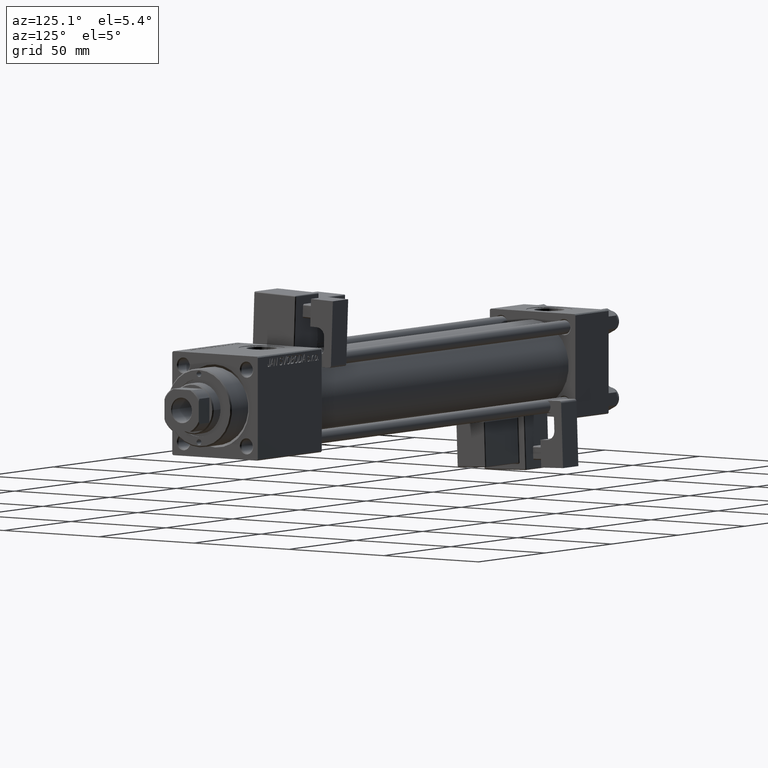
[diagram: clean part render]
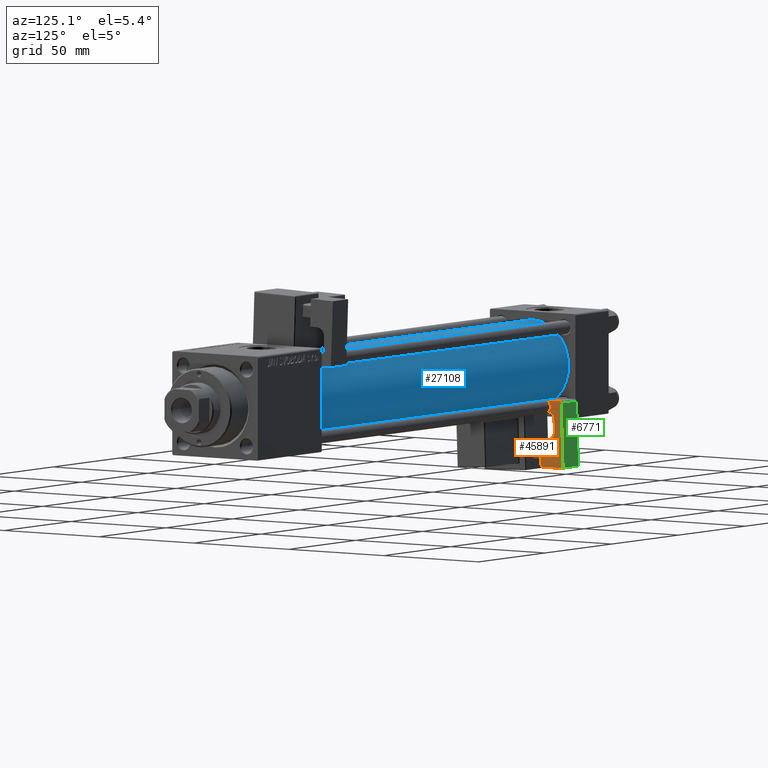
[diagram: same view with three faces highlighted in distinct colors, each labeled with its STEP entity id]
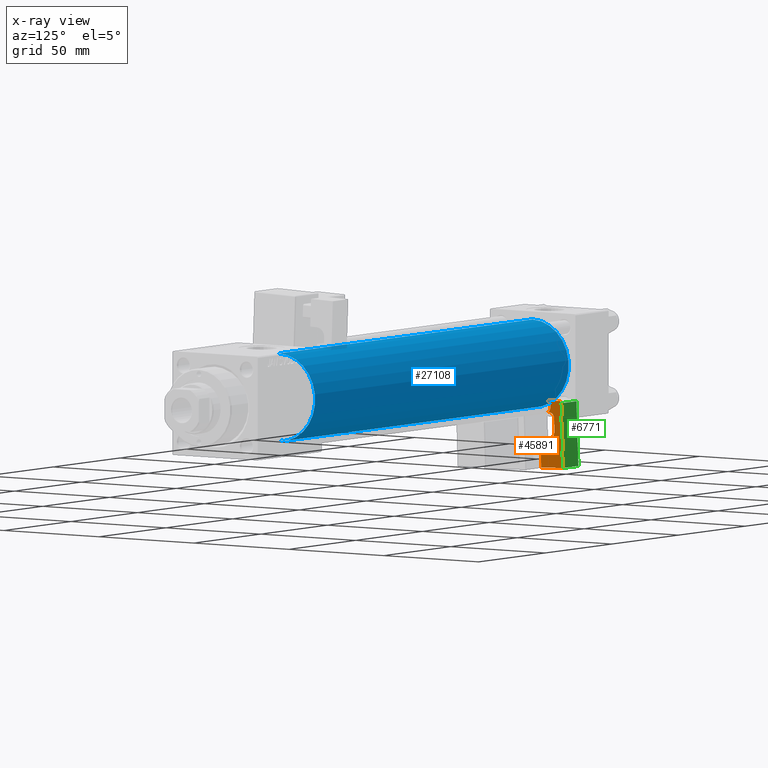
[diagram: x-ray of the same camera — body ghosted, the three highlighted faces saturated]
A machine part, auxiliary view with three faces highlighted in distinct colors.
The next image is the same camera in x-ray (body ghosted, the three faces saturated) — at least one of them is partly hidden behind the body in this view.
Their STEP definitions:

[orange] entity #45891 — the highlighted planar face has unit normal (-1, 0, 0).
#1113 = ORIENTED_EDGE ( 'NONE', *, *, #6749, .T. ) ;
#1540 = AXIS2_PLACEMENT_3D ( 'NONE', #41530, #20860, #29837 ) ;
#2222 = ORIENTED_EDGE ( 'NONE', *, *, #22876, .T. ) ;
#2661 = CIRCLE ( 'NONE', #24387, 2.999999999999999112 ) ;
#2738 = ORIENTED_EDGE ( 'NONE', *, *, #41881, .T. ) ;
#2755 = CARTESIAN_POINT ( 'NONE',  ( 5.750000000000000000, 5.750000000000001776, 28.00000000000000000 ) ) ;
#3214 = DIRECTION ( 'NONE',  ( -1.000000000000000000, 0.000000000000000000, 0.000000000000000000 ) ) ;
#3556 = EDGE_CURVE ( 'NONE', #51096, #42218, #6884, .T. ) ;
#3738 = CARTESIAN_POINT ( 'NONE',  ( 5.750000000000000000, -1.015596606550550396, 24.19533616120787300 ) ) ;
#4018 = VECTOR ( 'NONE', #40041, 1000.000000000000000 ) ;
#4258 = VERTEX_POINT ( 'NONE', #24271 ) ;
#4271 = PLANE ( 'NONE',  #47415 ) ;
#4318 = ORIENTED_EDGE ( 'NONE', *, *, #5758, .T. ) ;
#4638 = EDGE_CURVE ( 'NONE', #51036, #34882, #13574, .T. ) ;
#4773 = VERTEX_POINT ( 'NONE', #53696 ) ;
#5126 = ORIENTED_EDGE ( 'NONE', *, *, #29053, .T. ) ;
#5247 = DIRECTION ( 'NONE',  ( -0.000000000000000000, 1.000000000000000000, -0.000000000000000000 ) ) ;
#5293 = CARTESIAN_POINT ( 'NONE',  ( 5.750000000000000000, 4.750000000000002665, 29.00000000000000000 ) ) ;
#5413 = DIRECTION ( 'NONE',  ( 0.000000000000000000, -1.000000000000000000, 0.000000000000000000 ) ) ;
#5758 = EDGE_CURVE ( 'NONE', #10856, #4258, #12825, .T. ) ;
#5987 = VERTEX_POINT ( 'NONE', #38250 ) ;
#6133 = VERTEX_POINT ( 'NONE', #48282 ) ;
#6749 = EDGE_CURVE ( 'NONE', #11953, #51036, #23232, .T. ) ;
#6884 = LINE ( 'NONE', #33153, #4018 ) ;
#7364 = ORIENTED_EDGE ( 'NONE', *, *, #39955, .T. ) ;
#10856 = VERTEX_POINT ( 'NONE', #42660 ) ;
#11009 = ORIENTED_EDGE ( 'NONE', *, *, #16580, .T. ) ;
#11033 = ORIENTED_EDGE ( 'NONE', *, *, #42007, .F. ) ;
#11953 = VERTEX_POINT ( 'NONE', #2755 ) ;
#12825 = CIRCLE ( 'NONE', #38016, 4.000000000000000000 ) ;
#12894 = CARTESIAN_POINT ( 'NONE',  ( 5.750000000000000000, -2.936149805543990521, 26.50000000000000000 ) ) ;
#13089 = CARTESIAN_POINT ( 'NONE',  ( 5.750000000000000000, 1.749999999999999112, 21.50000000000000000 ) ) ;
#13574 = LINE ( 'NONE', #39858, #20543 ) ;
#13944 = LINE ( 'NONE', #30801, #44669 ) ;
#14196 = DIRECTION ( 'NONE',  ( 0.000000000000000000, -0.7682212795973755171, -0.6401843996644802637 ) ) ;
#14604 = ORIENTED_EDGE ( 'NONE', *, *, #3556, .T. ) ;
#14921 = AXIS2_PLACEMENT_3D ( 'NONE', #22548, #43203, #51362 ) ;
#15564 = DIRECTION ( 'NONE',  ( -0.000000000000000000, -0.000000000000000000, -1.000000000000000000 ) ) ;
#16580 = EDGE_CURVE ( 'NONE', #6133, #48592, #2661, .T. ) ;
#16831 = DIRECTION ( 'NONE',  ( -0.000000000000000000, -0.000000000000000000, -1.000000000000000000 ) ) ;
#16877 = VECTOR ( 'NONE', #14196, 1000.000000000000114 ) ;
#18019 = EDGE_CURVE ( 'NONE', #42218, #45260, #43552, .T. ) ;
#18992 = CARTESIAN_POINT ( 'NONE',  ( 5.750000000000000000, -2.250000000000002665, 16.00000000000000000 ) ) ;
#19261 = VECTOR ( 'NONE', #16831, 1000.000000000000000 ) ;
#20543 = VECTOR ( 'NONE', #5413, 1000.000000000000000 ) ;
#20690 = LINE ( 'NONE', #45176, #25575 ) ;
#20860 = DIRECTION ( 'NONE',  ( 1.000000000000000000, -0.000000000000000000, -0.000000000000000000 ) ) ;
#21563 = LINE ( 'NONE', #30272, #40359 ) ;
#21829 = CARTESIAN_POINT ( 'NONE',  ( 5.750000000000000000, 5.750000000000001776, 12.00000000000000000 ) ) ;
#22548 = CARTESIAN_POINT ( 'NONE',  ( 5.750000000000000000, -0.7500000000000007772, 21.50000000000000000 ) ) ;
#22876 = EDGE_CURVE ( 'NONE', #4773, #5987, #32903, .T. ) ;
#23152 = ORIENTED_EDGE ( 'NONE', *, *, #26445, .T. ) ;
#23232 = CIRCLE ( 'NONE', #1540, 1.000000000000000888 ) ;
#23301 = CARTESIAN_POINT ( 'NONE',  ( 5.750000000000000000, -1.249999999999999334, 29.00000000000000000 ) ) ;
#24271 = CARTESIAN_POINT ( 'NONE',  ( 5.750000000000000000, -2.250000000000001776, 12.00000000000000000 ) ) ;
#24387 = AXIS2_PLACEMENT_3D ( 'NONE', #12894, #40651, #36580 ) ;
#25575 = VECTOR ( 'NONE', #15564, 1000.000000000000000 ) ;
#26191 = DIRECTION ( 'NONE',  ( 0.000000000000000000, -3.071906155375595568E-16, -1.000000000000000000 ) ) ;
#26412 = EDGE_LOOP ( 'NONE', ( #11033, #1113, #30756, #23152, #11009, #5126, #14604, #41495, #7364, #4318, #32929, #2222, #2738 ) ) ;
#26432 = VECTOR ( 'NONE', #5247, 1000.000000000000000 ) ;
#26445 = EDGE_CURVE ( 'NONE', #34882, #6133, #32412, .T. ) ;
#28820 = CARTESIAN_POINT ( 'NONE',  ( 5.750000000000000000, -5.750000000000000000, 12.00000000000000000 ) ) ;
#29053 = EDGE_CURVE ( 'NONE', #48592, #51096, #29709, .T. ) ;
#29709 = LINE ( 'NONE', #34053, #16877 ) ;
#29837 = DIRECTION ( 'NONE',  ( 0.000000000000000000, -2.602085213965208275E-15, 1.000000000000000000 ) ) ;
#30272 = CARTESIAN_POINT ( 'NONE',  ( 5.750000000000000000, 1.750000000000000000, 24.00000000000000000 ) ) ;
#30756 = ORIENTED_EDGE ( 'NONE', *, *, #4638, .T. ) ;
#30801 = CARTESIAN_POINT ( 'NONE',  ( 5.750000000000000000, 5.750000000000001776, 0.000000000000000000 ) ) ;
#32412 = LINE ( 'NONE', #40830, #35053 ) ;
#32841 = CARTESIAN_POINT ( 'NONE',  ( 5.750000000000000000, 5.750000000000001776, 12.00000000000000000 ) ) ;
#32903 = LINE ( 'NONE', #28820, #19261 ) ;
#32929 = ORIENTED_EDGE ( 'NONE', *, *, #41705, .F. ) ;
#33153 = CARTESIAN_POINT ( 'NONE',  ( 5.750000000000000000, -1.249999999999999334, 24.00000000000000000 ) ) ;
#34053 = CARTESIAN_POINT ( 'NONE',  ( 5.750000000000000000, 1.749999999999999778, 26.50000000000000355 ) ) ;
#34882 = VERTEX_POINT ( 'NONE', #23301 ) ;
#35053 = VECTOR ( 'NONE', #53332, 1000.000000000000114 ) ;
#36580 = DIRECTION ( 'NONE',  ( 0.000000000000000000, 0.000000000000000000, 1.000000000000000000 ) ) ;
#38016 = AXIS2_PLACEMENT_3D ( 'NONE', #18992, #39654, #47806 ) ;
#38250 = CARTESIAN_POINT ( 'NONE',  ( 5.750000000000000000, -5.750000000000000000, 0.000000000000000000 ) ) ;
#39498 = DIRECTION ( 'NONE',  ( -0.000000000000000000, 1.000000000000000000, -0.000000000000000000 ) ) ;
#39654 = DIRECTION ( 'NONE',  ( -1.000000000000000000, 0.000000000000000000, 0.000000000000000000 ) ) ;
#39858 = CARTESIAN_POINT ( 'NONE',  ( 5.750000000000000000, 5.750000000000000000, 29.00000000000000000 ) ) ;
#39955 = EDGE_CURVE ( 'NONE', #45260, #10856, #21563, .T. ) ;
#40041 = DIRECTION ( 'NONE',  ( 0.000000000000000000, 1.000000000000000000, 0.000000000000000000 ) ) ;
#40359 = VECTOR ( 'NONE', #26191, 1000.000000000000000 ) ;
#40651 = DIRECTION ( 'NONE',  ( -1.000000000000000000, 0.000000000000000000, 0.000000000000000000 ) ) ;
#40654 = CARTESIAN_POINT ( 'NONE',  ( 5.750000000000000000, 5.750000000000001776, 0.000000000000000000 ) ) ;
#40830 = CARTESIAN_POINT ( 'NONE',  ( 5.750000000000000000, -1.249999999999999334, 29.00000000000000000 ) ) ;
#41495 = ORIENTED_EDGE ( 'NONE', *, *, #18019, .T. ) ;
#41530 = CARTESIAN_POINT ( 'NONE',  ( 5.750000000000000000, 4.750000000000001776, 28.00000000000000000 ) ) ;
#41705 = EDGE_CURVE ( 'NONE', #4773, #4258, #50103, .T. ) ;
#41881 = EDGE_CURVE ( 'NONE', #5987, #46142, #13944, .T. ) ;
#42007 = EDGE_CURVE ( 'NONE', #11953, #46142, #20690, .T. ) ;
#42218 = VERTEX_POINT ( 'NONE', #42699 ) ;
#42660 = CARTESIAN_POINT ( 'NONE',  ( 5.750000000000000000, 1.749999999999997558, 16.00000000000000000 ) ) ;
#42699 = CARTESIAN_POINT ( 'NONE',  ( 5.750000000000000000, -0.7500000000000007772, 24.00000000000000000 ) ) ;
#43203 = DIRECTION ( 'NONE',  ( -1.000000000000000000, 0.000000000000000000, 0.000000000000000000 ) ) ;
#43552 = CIRCLE ( 'NONE', #14921, 2.499999999999998668 ) ;
#43609 = CARTESIAN_POINT ( 'NONE',  ( 5.750000000000000000, -1.249999999999999334, 24.00000000000000000 ) ) ;
#44669 = VECTOR ( 'NONE', #39498, 1000.000000000000000 ) ;
#45176 = CARTESIAN_POINT ( 'NONE',  ( 5.750000000000000000, 5.750000000000001776, 12.00000000000000000 ) ) ;
#45260 = VERTEX_POINT ( 'NONE', #13089 ) ;
#45891 = ADVANCED_FACE ( 'NONE', ( #53759 ), #4271, .F. ) ;
#46142 = VERTEX_POINT ( 'NONE', #40654 ) ;
#47415 = AXIS2_PLACEMENT_3D ( 'NONE', #32841, #3214, #49407 ) ;
#47806 = DIRECTION ( 'NONE',  ( 0.000000000000000000, 0.000000000000000000, 1.000000000000000000 ) ) ;
#48282 = CARTESIAN_POINT ( 'NONE',  ( 5.750000000000000000, -1.015596606550550618, 28.80466383879212700 ) ) ;
#48592 = VERTEX_POINT ( 'NONE', #3738 ) ;
#49407 = DIRECTION ( 'NONE',  ( 0.000000000000000000, 0.000000000000000000, 1.000000000000000000 ) ) ;
#50103 = LINE ( 'NONE', #21829, #26432 ) ;
#51036 = VERTEX_POINT ( 'NONE', #5293 ) ;
#51096 = VERTEX_POINT ( 'NONE', #43609 ) ;
#51362 = DIRECTION ( 'NONE',  ( 0.000000000000000000, 0.000000000000000000, 1.000000000000000000 ) ) ;
#53332 = DIRECTION ( 'NONE',  ( 0.000000000000000000, 0.7682212795973759611, -0.6401843996644797086 ) ) ;
#53696 = CARTESIAN_POINT ( 'NONE',  ( 5.750000000000000000, -5.750000000000000000, 12.00000000000000000 ) ) ;
#53759 = FACE_OUTER_BOUND ( 'NONE', #26412, .T. ) ;

[blue] entity #27108 — the highlighted cylindrical surface (partial cylindrical patch) has radius 19 mm, axis along (-1, -0, -0).
#811 = CARTESIAN_POINT ( 'NONE',  ( 24.99999999999999289, -2.602085213965210642E-15, 0.000000000000000000 ) ) ;
#849 = CARTESIAN_POINT ( 'NONE',  ( 215.0000000000000000, -2.752562955852396712E-16, -19.00000000000000000 ) ) ;
#979 = ORIENTED_EDGE ( 'NONE', *, *, #15561, .F. ) ;
#1632 = DIRECTION ( 'NONE',  ( 1.000000000000000000, -0.000000000000000000, 0.000000000000000000 ) ) ;
#4138 = CARTESIAN_POINT ( 'NONE',  ( 215.0000000000000000, -2.602085213965210642E-15, 19.00000000000000000 ) ) ;
#4387 = LINE ( 'NONE', #849, #24502 ) ;
#4602 = VERTEX_POINT ( 'NONE', #43928 ) ;
#5935 = AXIS2_PLACEMENT_3D ( 'NONE', #811, #1632, #18210 ) ;
#11138 = ORIENTED_EDGE ( 'NONE', *, *, #19148, .T. ) ;
#12161 = AXIS2_PLACEMENT_3D ( 'NONE', #27028, #44155, #48500 ) ;
#12845 = VERTEX_POINT ( 'NONE', #45681 ) ;
#13653 = VERTEX_POINT ( 'NONE', #4138 ) ;
#14428 = CARTESIAN_POINT ( 'NONE',  ( 215.0000000000000000, -2.752562955852396712E-16, -19.00000000000000000 ) ) ;
#15561 = EDGE_CURVE ( 'NONE', #40963, #13653, #35613, .T. ) ;
#16151 = FACE_OUTER_BOUND ( 'NONE', #33970, .T. ) ;
#18210 = DIRECTION ( 'NONE',  ( 0.000000000000000000, 0.000000000000000000, 1.000000000000000000 ) ) ;
#19148 = EDGE_CURVE ( 'NONE', #40963, #12845, #4387, .T. ) ;
#20225 = CYLINDRICAL_SURFACE ( 'NONE', #26369, 19.00000000000000000 ) ;
#21234 = DIRECTION ( 'NONE',  ( -1.000000000000000000, -0.000000000000000000, -0.000000000000000000 ) ) ;
#24502 = VECTOR ( 'NONE', #21234, 1000.000000000000000 ) ;
#24562 = ORIENTED_EDGE ( 'NONE', *, *, #50799, .T. ) ;
#26369 = AXIS2_PLACEMENT_3D ( 'NONE', #36828, #42507, #33272 ) ;
#27028 = CARTESIAN_POINT ( 'NONE',  ( 215.0000000000000000, -2.602085213965210642E-15, 0.000000000000000000 ) ) ;
#27108 = ADVANCED_FACE ( 'NONE', ( #16151 ), #20225, .T. ) ;
#32031 = CIRCLE ( 'NONE', #5935, 19.00000000000000000 ) ;
#32479 = LINE ( 'NONE', #48782, #45561 ) ;
#33272 = DIRECTION ( 'NONE',  ( 0.000000000000000000, 0.000000000000000000, 1.000000000000000000 ) ) ;
#33970 = EDGE_LOOP ( 'NONE', ( #979, #11138, #24562, #52085 ) ) ;
#35613 = CIRCLE ( 'NONE', #12161, 19.00000000000000000 ) ;
#36828 = CARTESIAN_POINT ( 'NONE',  ( 215.0000000000000000, -2.602085213965210642E-15, 0.000000000000000000 ) ) ;
#39894 = EDGE_CURVE ( 'NONE', #13653, #4602, #32479, .T. ) ;
#40963 = VERTEX_POINT ( 'NONE', #14428 ) ;
#42507 = DIRECTION ( 'NONE',  ( -1.000000000000000000, -0.000000000000000000, -0.000000000000000000 ) ) ;
#43928 = CARTESIAN_POINT ( 'NONE',  ( 24.99999999999999289, -2.602085213965210642E-15, 19.00000000000000000 ) ) ;
#44155 = DIRECTION ( 'NONE',  ( 1.000000000000000000, 0.000000000000000000, 0.000000000000000000 ) ) ;
#45561 = VECTOR ( 'NONE', #49044, 1000.000000000000000 ) ;
#45681 = CARTESIAN_POINT ( 'NONE',  ( 24.99999999999999289, -2.752562955852396712E-16, -19.00000000000000000 ) ) ;
#48500 = DIRECTION ( 'NONE',  ( 0.000000000000000000, 0.000000000000000000, -1.000000000000000000 ) ) ;
#48782 = CARTESIAN_POINT ( 'NONE',  ( 215.0000000000000000, -2.602085213965210642E-15, 19.00000000000000000 ) ) ;
#49044 = DIRECTION ( 'NONE',  ( -1.000000000000000000, -0.000000000000000000, -0.000000000000000000 ) ) ;
#50799 = EDGE_CURVE ( 'NONE', #12845, #4602, #32031, .T. ) ;
#52085 = ORIENTED_EDGE ( 'NONE', *, *, #39894, .F. ) ;

[green] entity #6771 — the highlighted planar face has unit normal (0, -0.9994, -0.0353).
#560 = VECTOR ( 'NONE', #26291, 1000.000000000000000 ) ;
#2755 = CARTESIAN_POINT ( 'NONE',  ( 5.750000000000000000, 5.750000000000001776, 28.00000000000000000 ) ) ;
#4017 = PLANE ( 'NONE',  #26724 ) ;
#6771 = ADVANCED_FACE ( 'NONE', ( #42064 ), #4017, .F. ) ;
#8491 = CARTESIAN_POINT ( 'NONE',  ( -5.750000000000000000, 5.750000000000000000, 0.000000000000000000 ) ) ;
#8933 = CARTESIAN_POINT ( 'NONE',  ( -5.750000000000000000, 5.750000000000000000, 0.000000000000000000 ) ) ;
#11953 = VERTEX_POINT ( 'NONE', #2755 ) ;
#14787 = EDGE_CURVE ( 'NONE', #46142, #42521, #29159, .T. ) ;
#15331 = ORIENTED_EDGE ( 'NONE', *, *, #46870, .F. ) ;
#15564 = DIRECTION ( 'NONE',  ( -0.000000000000000000, -0.000000000000000000, -1.000000000000000000 ) ) ;
#16558 = LINE ( 'NONE', #44591, #43730 ) ;
#17848 = ORIENTED_EDGE ( 'NONE', *, *, #42007, .T. ) ;
#19567 = ORIENTED_EDGE ( 'NONE', *, *, #41052, .T. ) ;
#19858 = VERTEX_POINT ( 'NONE', #30883 ) ;
#20690 = LINE ( 'NONE', #45176, #25575 ) ;
#23507 = ORIENTED_EDGE ( 'NONE', *, *, #14787, .T. ) ;
#25575 = VECTOR ( 'NONE', #15564, 1000.000000000000000 ) ;
#26291 = DIRECTION ( 'NONE',  ( -0.000000000000000000, -0.000000000000000000, -1.000000000000000000 ) ) ;
#26724 = AXIS2_PLACEMENT_3D ( 'NONE', #37448, #46411, #36924 ) ;
#29159 = LINE ( 'NONE', #8491, #52958 ) ;
#29693 = DIRECTION ( 'NONE',  ( -1.000000000000000000, -1.508455196501571429E-16, -0.000000000000000000 ) ) ;
#29834 = LINE ( 'NONE', #30098, #560 ) ;
#30098 = CARTESIAN_POINT ( 'NONE',  ( -5.750000000000000000, 5.750000000000000000, 12.00000000000000000 ) ) ;
#30883 = CARTESIAN_POINT ( 'NONE',  ( -5.750000000000000000, 5.750000000000000000, 28.00000000000000000 ) ) ;
#36924 = DIRECTION ( 'NONE',  ( 1.000000000000000000, 1.508455196501571183E-16, 0.000000000000000000 ) ) ;
#37448 = CARTESIAN_POINT ( 'NONE',  ( -5.750000000000000000, 5.750000000000000000, 12.00000000000000000 ) ) ;
#40654 = CARTESIAN_POINT ( 'NONE',  ( 5.750000000000000000, 5.750000000000001776, 0.000000000000000000 ) ) ;
#41052 = EDGE_CURVE ( 'NONE', #19858, #11953, #16558, .T. ) ;
#42007 = EDGE_CURVE ( 'NONE', #11953, #46142, #20690, .T. ) ;
#42064 = FACE_OUTER_BOUND ( 'NONE', #42656, .T. ) ;
#42521 = VERTEX_POINT ( 'NONE', #8933 ) ;
#42656 = EDGE_LOOP ( 'NONE', ( #15331, #19567, #17848, #23507 ) ) ;
#43730 = VECTOR ( 'NONE', #52751, 1000.000000000000000 ) ;
#44591 = CARTESIAN_POINT ( 'NONE',  ( -5.750000000000000000, 5.750000000000000000, 28.00000000000000000 ) ) ;
#45176 = CARTESIAN_POINT ( 'NONE',  ( 5.750000000000000000, 5.750000000000001776, 12.00000000000000000 ) ) ;
#46142 = VERTEX_POINT ( 'NONE', #40654 ) ;
#46411 = DIRECTION ( 'NONE',  ( 1.508455196501571183E-16, -1.000000000000000000, 0.000000000000000000 ) ) ;
#46870 = EDGE_CURVE ( 'NONE', #19858, #42521, #29834, .T. ) ;
#52751 = DIRECTION ( 'NONE',  ( 1.000000000000000000, 1.508455196501571183E-16, -0.000000000000000000 ) ) ;
#52958 = VECTOR ( 'NONE', #29693, 1000.000000000000000 ) ;